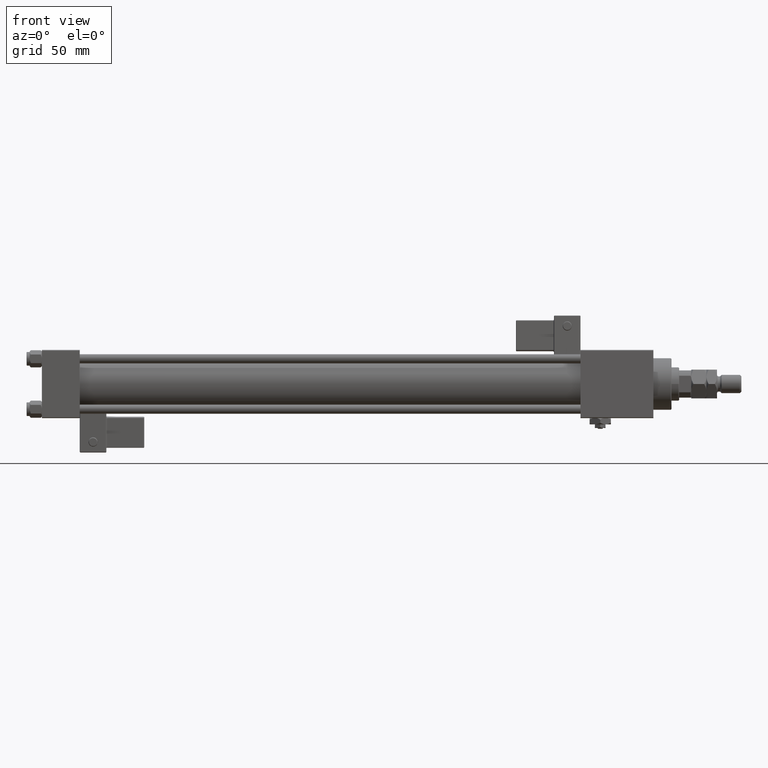
[diagram: clean part render]
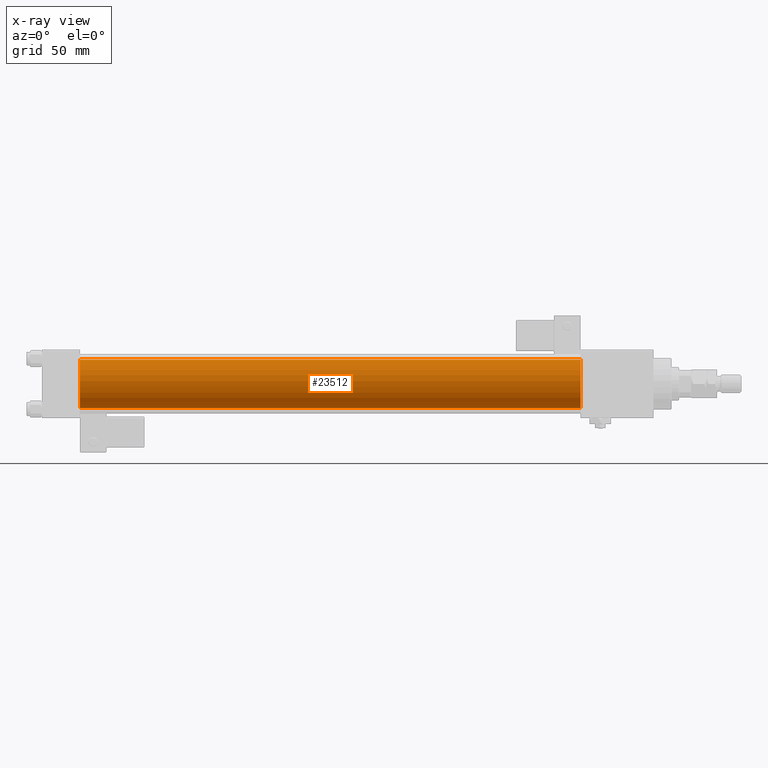
[diagram: x-ray — body ghosted, one internal face saturated and labeled with its STEP entity id]
A machine part, front view, then the same camera in x-ray: the body is ghosted and one INTERNAL B-rep face — a face not visible from any outside direction — is saturated and labeled: STEP entity #23512.
In plain terms, the highlighted cylindrical surface (edge-blend (fillet) strip) has radius 16 mm, axis along (-1, -0, -0).
Its self-contained STEP definition (entity closure, byte-faithful):
#463 = CARTESIAN_POINT ( 'NONE',  ( 25.00000000000000000, -2.602085213965210642E-15, 16.00000000000000000 ) ) ;
#3563 = LINE ( 'NONE', #37912, #37513 ) ;
#3851 = DIRECTION ( 'NONE',  ( 0.000000000000000000, 0.000000000000000000, 1.000000000000000000 ) ) ;
#4373 = ORIENTED_EDGE ( 'NONE', *, *, #37409, .T. ) ;
#5322 = DIRECTION ( 'NONE',  ( 1.000000000000000000, 0.000000000000000000, 0.000000000000000000 ) ) ;
#7127 = AXIS2_PLACEMENT_3D ( 'NONE', #51996, #7593, #21290 ) ;
#7249 = DIRECTION ( 'NONE',  ( -1.000000000000000000, -0.000000000000000000, -0.000000000000000000 ) ) ;
#7593 = DIRECTION ( 'NONE',  ( 1.000000000000000000, 0.000000000000000000, 0.000000000000000000 ) ) ;
#8363 = FACE_OUTER_BOUND ( 'NONE', #20288, .T. ) ;
#8370 = ORIENTED_EDGE ( 'NONE', *, *, #28536, .F. ) ;
#11348 = LINE ( 'NONE', #49936, #23940 ) ;
#11386 = VERTEX_POINT ( 'NONE', #463 ) ;
#12107 = CARTESIAN_POINT ( 'NONE',  ( 355.0000000000000568, -2.602085213965210642E-15, 16.00000000000000000 ) ) ;
#14419 = VERTEX_POINT ( 'NONE', #28756 ) ;
#15472 = ORIENTED_EDGE ( 'NONE', *, *, #35336, .F. ) ;
#16090 = CIRCLE ( 'NONE', #7127, 16.00000000000000000 ) ;
#20288 = EDGE_LOOP ( 'NONE', ( #4373, #46836, #15472, #8370 ) ) ;
#21290 = DIRECTION ( 'NONE',  ( 0.000000000000000000, 0.000000000000000000, -1.000000000000000000 ) ) ;
#23512 = ADVANCED_FACE ( 'NONE', ( #8363 ), #25550, .F. ) ;
#23940 = VECTOR ( 'NONE', #32739, 1000.000000000000000 ) ;
#24900 = EDGE_CURVE ( 'NONE', #35236, #14419, #11348, .T. ) ;
#25550 = CYLINDRICAL_SURFACE ( 'NONE', #52617, 16.00000000000000000 ) ;
#28536 = EDGE_CURVE ( 'NONE', #48837, #11386, #3563, .T. ) ;
#28756 = CARTESIAN_POINT ( 'NONE',  ( 25.00000000000000000, -6.426503353294456087E-16, -16.00000000000000000 ) ) ;
#30400 = DIRECTION ( 'NONE',  ( 0.000000000000000000, 0.000000000000000000, -1.000000000000000000 ) ) ;
#32739 = DIRECTION ( 'NONE',  ( -1.000000000000000000, -0.000000000000000000, -0.000000000000000000 ) ) ;
#35236 = VERTEX_POINT ( 'NONE', #36863 ) ;
#35336 = EDGE_CURVE ( 'NONE', #11386, #14419, #16090, .T. ) ;
#36863 = CARTESIAN_POINT ( 'NONE',  ( 355.0000000000000568, -6.426503353294456087E-16, -16.00000000000000000 ) ) ;
#37409 = EDGE_CURVE ( 'NONE', #48837, #35236, #53961, .T. ) ;
#37513 = VECTOR ( 'NONE', #7249, 1000.000000000000000 ) ;
#37912 = CARTESIAN_POINT ( 'NONE',  ( 355.0000000000000568, -2.602085213965210642E-15, 16.00000000000000000 ) ) ;
#42255 = AXIS2_PLACEMENT_3D ( 'NONE', #55731, #5322, #30400 ) ;
#46836 = ORIENTED_EDGE ( 'NONE', *, *, #24900, .T. ) ;
#48837 = VERTEX_POINT ( 'NONE', #12107 ) ;
#49936 = CARTESIAN_POINT ( 'NONE',  ( 355.0000000000000568, -6.426503353294456087E-16, -16.00000000000000000 ) ) ;
#51454 = DIRECTION ( 'NONE',  ( -1.000000000000000000, -0.000000000000000000, -0.000000000000000000 ) ) ;
#51996 = CARTESIAN_POINT ( 'NONE',  ( 25.00000000000000000, -2.602085213965210642E-15, 0.000000000000000000 ) ) ;
#52617 = AXIS2_PLACEMENT_3D ( 'NONE', #55662, #51454, #3851 ) ;
#53961 = CIRCLE ( 'NONE', #42255, 16.00000000000000000 ) ;
#55662 = CARTESIAN_POINT ( 'NONE',  ( 355.0000000000000568, -2.602085213965210642E-15, 0.000000000000000000 ) ) ;
#55731 = CARTESIAN_POINT ( 'NONE',  ( 355.0000000000000568, -2.602085213965210642E-15, 0.000000000000000000 ) ) ;